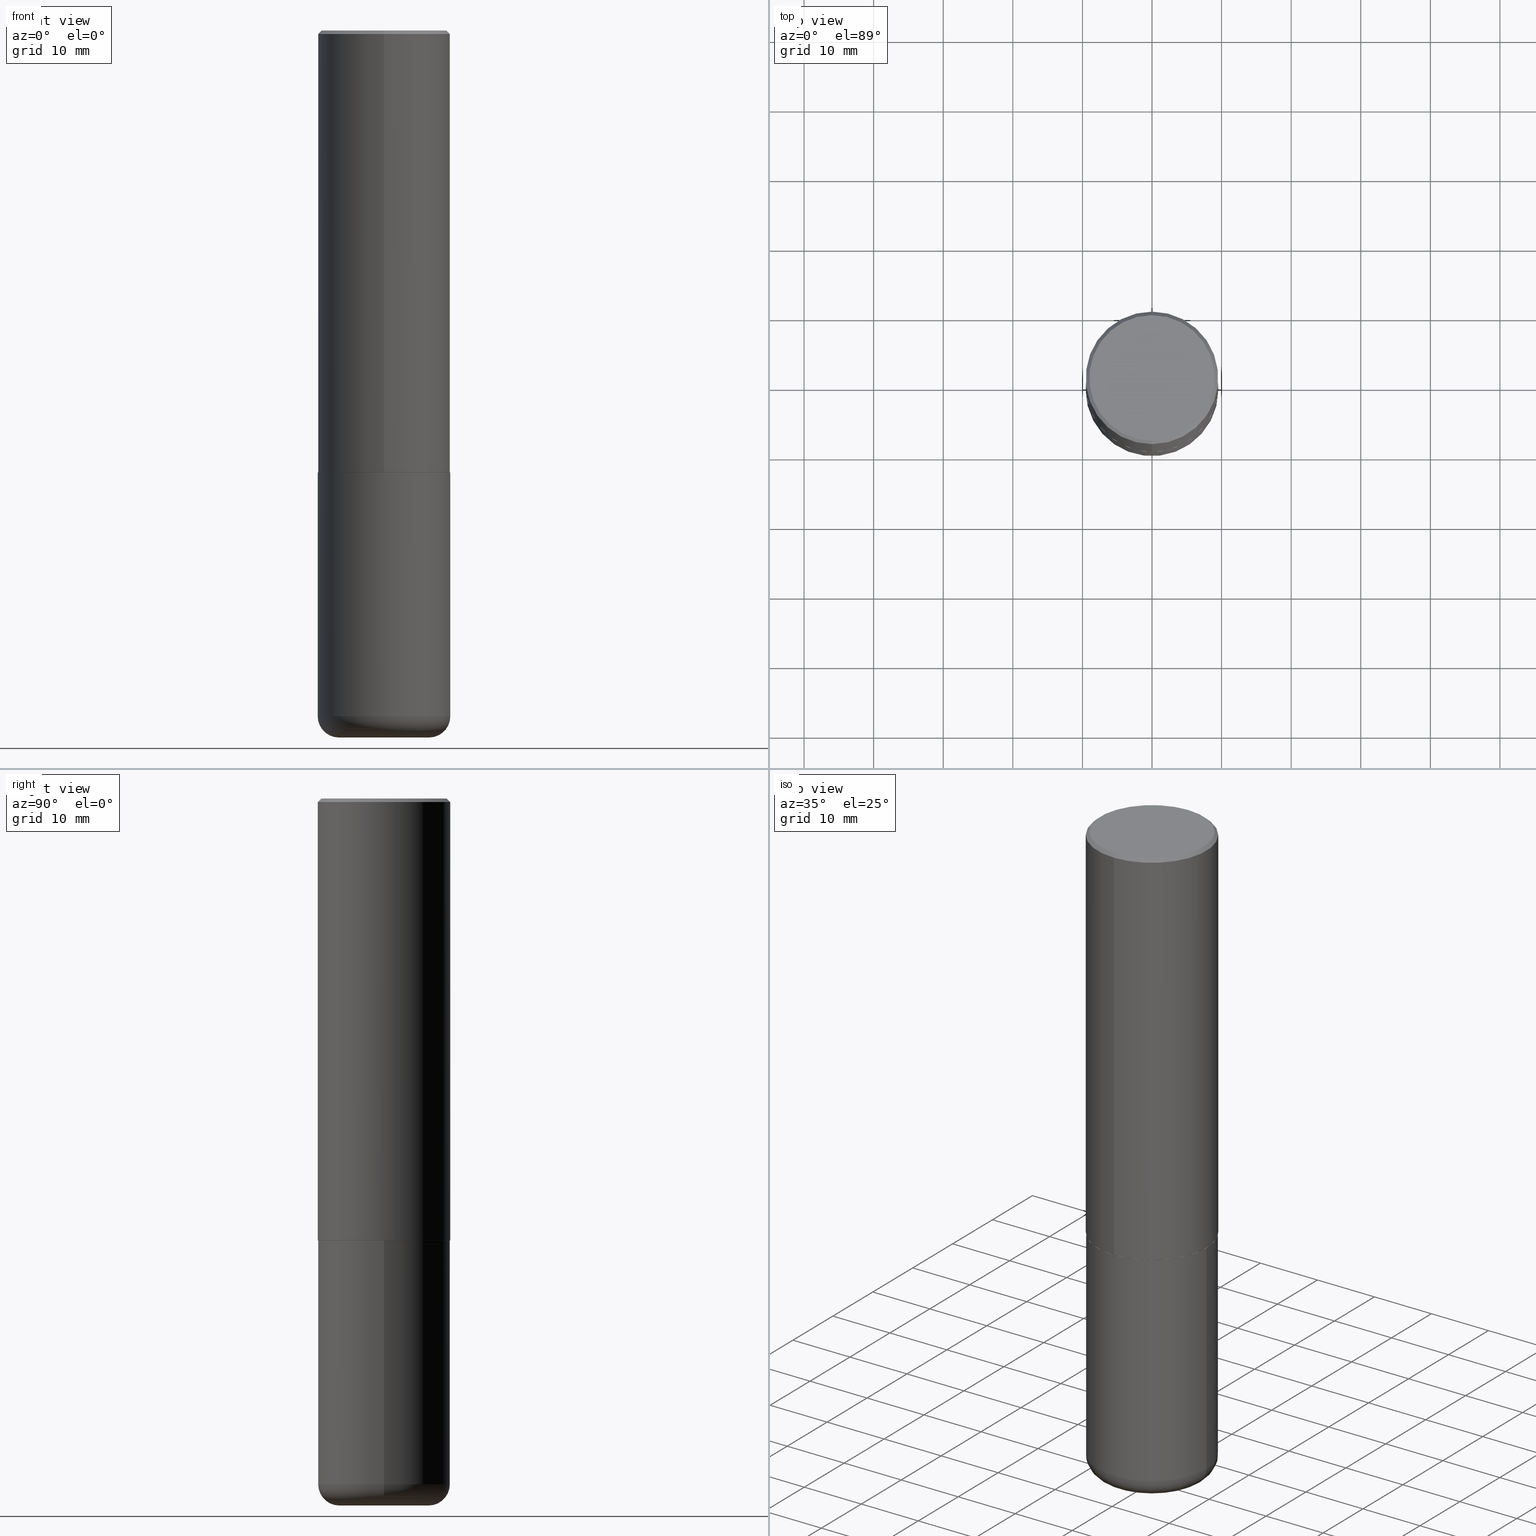
[diagram: canonical four-view strip — front | top / right | iso, engineering-drawing reading convention]
A machine part, canonical four-view strip (front | top / right | iso — engineering-drawing reading convention). The complete STEP part file that produces these views, byte-faithful:
ISO-10303-21;
HEADER;
FILE_DESCRIPTION (( 'STEP AP203' ),
    '1' );
FILE_NAME ('37213.STEP',
    '2024-03-01T22:02:40',
    ( '' ),
    ( '' ),
    'SwSTEP 2.0',
    'SolidWorks 2023',
    '' );
FILE_SCHEMA (( 'CONFIG_CONTROL_DESIGN' ));
ENDSEC;

DATA;
#1 = ORIENTED_EDGE ( 'NONE', *, *, #232, .T. ) ;
#2 = VERTEX_POINT ( 'NONE', #169 ) ;
#3 = AXIS2_PLACEMENT_3D ( 'NONE', #41, #257, #294 ) ;
#4 = AXIS2_PLACEMENT_3D ( 'NONE', #388, #96, #189 ) ;
#5 = ADVANCED_FACE ( 'NONE', ( #254 ), #165, .T. ) ;
#6 = CC_DESIGN_APPROVAL ( #330, ( #134 ) ) ;
#7 = ORIENTED_EDGE ( 'NONE', *, *, #35, .F. ) ;
#8 = FACE_OUTER_BOUND ( 'NONE', #93, .T. ) ;
#9 = ORIENTED_EDGE ( 'NONE', *, *, #220, .F. ) ;
#10 = AXIS2_PLACEMENT_3D ( 'NONE', #350, #274, #26 ) ;
#11 = DIRECTION ( 'NONE',  ( -2.444946167972934928E-29, 3.492229786509738161E-15, 1.000000000000000000 ) ) ;
#12 = DIRECTION ( 'NONE',  ( 6.982962677686265922E-15, 1.000000000000000000, -3.494488891895536035E-15 ) ) ;
#13 = CARTESIAN_POINT ( 'NONE',  ( 9.488418967998330085E-29, -1.354694759471140570E-14, -3.880000000000000338 ) ) ;
#14 = DATE_AND_TIME ( #140, #177 ) ;
#15 = VERTEX_POINT ( 'NONE', #367 ) ;
#16 = CARTESIAN_POINT ( 'NONE',  ( 2.657429831742835431E-15, 0.3739999999999912839, -2.500000000000001332 ) ) ;
#17 = CARTESIAN_POINT ( 'NONE',  ( 4.889892335945890560E-31, -6.984459573019506053E-17, -0.02000000000000008715 ) ) ;
#18 = EDGE_LOOP ( 'NONE', ( #161, #110 ) ) ;
#19 = CIRCLE ( 'NONE', #114, 0.3750000000000002776 ) ;
#20 = VERTEX_POINT ( 'NONE', #297 ) ;
#21 = CARTESIAN_POINT ( 'NONE',  ( 0.3750000000000000555, -2.618611004132350016E-15, 1.828566290923476203E-29 ) ) ;
#22 = DIRECTION ( 'NONE',  ( -1.000000000000000000, 6.982962677686265922E-15, -4.876176775795935793E-29 ) ) ;
#23 = ORIENTED_EDGE ( 'NONE', *, *, #276, .T. ) ;
#24 = DIRECTION ( 'NONE',  ( -2.445468806185136597E-29, 3.491481338843145583E-15, 1.000000000000000000 ) ) ;
#25 = ADVANCED_FACE ( 'NONE', ( #395 ), #369, .T. ) ;
#26 = DIRECTION ( 'NONE',  ( -6.982962677686266711E-15, -1.000000000000000000, 2.921762560068730595E-15 ) ) ;
#27 = CIRCLE ( 'NONE', #4, 0.3739999999999999991 ) ;
#28 = CARTESIAN_POINT ( 'NONE',  ( 9.488418967998330085E-29, -1.354694759471140570E-14, -3.880000000000000338 ) ) ;
#29 = DIRECTION ( 'NONE',  ( 2.444946167972934647E-29, -3.492229786509738161E-15, -1.000000000000000000 ) ) ;
#30 = DATE_AND_TIME ( #179, #88 ) ;
#31 = CARTESIAN_POINT ( 'NONE',  ( 6.112365419932337880E-29, -8.730574466274345798E-15, -2.500000000000000000 ) ) ;
#32 = CC_DESIGN_PERSON_AND_ORGANIZATION_ASSIGNMENT ( #337, #264, ( #134 ) ) ;
#33 = AXIS2_PLACEMENT_3D ( 'NONE', #412, #142, #116 ) ;
#34 = DIRECTION ( 'NONE',  ( -2.445468806185136597E-29, 3.491481338843145583E-15, 1.000000000000000000 ) ) ;
#35 = EDGE_CURVE ( 'NONE', #205, #42, #139, .T. ) ;
#36 = ORIENTED_EDGE ( 'NONE', *, *, #131, .F. ) ;
#37 = ADVANCED_FACE ( 'NONE', ( #339 ), #310, .T. ) ;
#38 = TOROIDAL_SURFACE ( 'NONE', #280, 0.2550000000000000044, 0.1200000000000001898 ) ;
#39 = VERTEX_POINT ( 'NONE', #402 ) ;
#40 = APPROVAL ( #129, 'UNSPECIFIED' ) ;
#41 = CARTESIAN_POINT ( 'NONE',  ( -4.181009497849235809E-45, 5.971929401690963589E-31, 1.710061985256567949E-16 ) ) ;
#42 = VERTEX_POINT ( 'NONE', #72 ) ;
#43 = CIRCLE ( 'NONE', #148, 0.3750000000000000555 ) ;
#44 = EDGE_CURVE ( 'NONE', #20, #209, #335, .T. ) ;
#45 = ORIENTED_EDGE ( 'NONE', *, *, #377, .F. ) ;
#46 = MANIFOLD_SOLID_BREP ( 'Body-Move/Copy2[2]', #364 ) ;
#47 = VECTOR ( 'NONE', #193, 39.37007874015748143 ) ;
#48 = DIRECTION ( 'NONE',  ( -2.445468806185136597E-29, 3.491481338843145583E-15, 1.000000000000000000 ) ) ;
#49 = CARTESIAN_POINT ( 'NONE',  ( 2.618611004132350411E-15, 0.3749999999999999445, -0.02000000000000139513 ) ) ;
#50 = CARTESIAN_POINT ( 'NONE',  ( 9.781875224740547508E-29, -1.396592535537258391E-14, -4.000000000000000888 ) ) ;
#51 = DIRECTION ( 'NONE',  ( 0.000000000000000000, 0.000000000000000000, 1.000000000000000000 ) ) ;
#52 = LINE ( 'NONE', #21, #127 ) ;
#53 = CARTESIAN_POINT ( 'NONE',  ( 2.478951750578623420E-15, 0.3549999999999998157, -1.154238474948128131E-15 ) ) ;
#54 = AXIS2_PLACEMENT_3D ( 'NONE', #121, #79, #379 ) ;
#55 = FACE_OUTER_BOUND ( 'NONE', #126, .T. ) ;
#56 = EDGE_CURVE ( 'NONE', #356, #39, #286, .T. ) ;
#57 = DIRECTION ( 'NONE',  ( -2.444946167972934928E-29, 3.492229786509738161E-15, 1.000000000000000000 ) ) ;
#58 = CARTESIAN_POINT ( 'NONE',  ( 2.660982545421636724E-15, 0.3739999999999912839, -2.500000000000001332 ) ) ;
#59 = EDGE_LOOP ( 'NONE', ( #227, #23, #170, #224 ) ) ;
#60 = AXIS2_PLACEMENT_3D ( 'NONE', #296, #168, #12 ) ;
#61 = DIRECTION ( 'NONE',  ( 2.444946167972934928E-29, -3.492229786509738161E-15, -1.000000000000000000 ) ) ;
#62 = EDGE_CURVE ( 'NONE', #209, #130, #212, .T. ) ;
#63 = EDGE_LOOP ( 'NONE', ( #386, #97 ) ) ;
#64 = AXIS2_PLACEMENT_3D ( 'NONE', #273, #51, #411 ) ;
#65 = CARTESIAN_POINT ( 'NONE',  ( -2.572686749164323547E-15, -0.3750000000000001110, -0.01999999999999877570 ) ) ;
#66 = ORIENTED_EDGE ( 'NONE', *, *, #362, .F. ) ;
#67 = CARTESIAN_POINT ( 'NONE',  ( -2.618611004132351200E-15, -0.3750000000000001665, 1.309586169941152501E-15 ) ) ;
#68 = COORDINATED_UNIVERSAL_TIME_OFFSET ( 5, 0, .BEHIND. ) ;
#69 = VECTOR ( 'NONE', #300, 39.37007874015748143 ) ;
#70 = VECTOR ( 'NONE', #376, 39.37007874015748143 ) ;
#71 = PRODUCT_RELATED_PRODUCT_CATEGORY ( 'detail', '', ( #90 ) ) ;
#72 = CARTESIAN_POINT ( 'NONE',  ( -0.3750000000000000555, -8.473290211809258834E-15, -2.500000000000000000 ) ) ;
#73 = PERSON_AND_ORGANIZATION ( #397, #230 ) ;
#74 = ORIENTED_EDGE ( 'NONE', *, *, #44, .F. ) ;
#75 = CARTESIAN_POINT ( 'NONE',  ( 0.000000000000000000, 0.000000000000000000, 0.000000000000000000 ) ) ;
#76 = CARTESIAN_POINT ( 'NONE',  ( 3.797124611134379022E-29, -2.253642886490752919E-14, -4.000000000000000000 ) ) ;
#77 = CIRCLE ( 'NONE', #399, 0.1200000000000002176 ) ;
#78 = APPROVAL_PERSON_ORGANIZATION ( #390, #40, #133 ) ;
#79 = DIRECTION ( 'NONE',  ( -2.444946167972934928E-29, 3.492229786509738161E-15, 1.000000000000000000 ) ) ;
#80 = DIMENSIONAL_EXPONENTS ( 1.000000000000000000, 0.000000000000000000, 0.000000000000000000, 0.000000000000000000, 0.000000000000000000, 0.000000000000000000, 0.000000000000000000 ) ;
#81 = ORIENTED_EDGE ( 'NONE', *, *, #389, .F. ) ;
#82 = COORDINATED_UNIVERSAL_TIME_OFFSET ( 5, 0, .BEHIND. ) ;
#83 = DIRECTION ( 'NONE',  ( -2.445468806185136597E-29, 3.491481338843145583E-15, 1.000000000000000000 ) ) ;
#84 = PERSON_AND_ORGANIZATION ( #397, #230 ) ;
#85 = CONICAL_SURFACE ( 'NONE', #190, 0.3739999999999999991, 0.7853981633976873100 ) ;
#86 = CARTESIAN_POINT ( 'NONE',  ( -0.3750000000000001110, -1.088241233561102684E-14, -3.880000000000000338 ) ) ;
#87 = AXIS2_PLACEMENT_3D ( 'NONE', #31, #216, #284 ) ;
#88 = LOCAL_TIME ( 17, 2, 40.00000000000000000, #82 ) ;
#89 = CC_DESIGN_DATE_AND_TIME_ASSIGNMENT ( #30, #181, ( #334 ) ) ;
#90 = PRODUCT ( '37213', '37213', '', ( #119 ) ) ;
#91 = CARTESIAN_POINT ( 'NONE',  ( -2.611628041454602471E-15, -0.3740000000000087699, -2.499999999999999112 ) ) ;
#92 = DATE_AND_TIME ( #123, #304 ) ;
#93 = EDGE_LOOP ( 'NONE', ( #81, #219 ) ) ;
#94 = ADVANCED_FACE ( 'NONE', ( #135 ), #85, .T. ) ;
#95 = PRODUCT_DEFINITION_SHAPE ( 'NONE', 'NONE',  #136 ) ;
#96 = DIRECTION ( 'NONE',  ( -2.444946167972934928E-29, 3.492229786509738161E-15, 1.000000000000000000 ) ) ;
#97 = ORIENTED_EDGE ( 'NONE', *, *, #220, .T. ) ;
#98 = LINE ( 'NONE', #65, #154 ) ;
#99 = CC_DESIGN_PERSON_AND_ORGANIZATION_ASSIGNMENT ( #194, #248, ( #90 ) ) ;
#100 = AXIS2_PLACEMENT_3D ( 'NONE', #182, #115, #22 ) ;
#101 = CARTESIAN_POINT ( 'NONE',  ( -0.3750000000000000555, 2.664535259100376091E-15, -1.844600658845589598E-29 ) ) ;
#102 = EDGE_CURVE ( 'NONE', #158, #107, #262, .T. ) ;
#103 = APPROVAL_STATUS ( 'not_yet_approved' ) ;
#104 = EDGE_CURVE ( 'NONE', #291, #130, #120, .T. ) ;
#105 = CIRCLE ( 'NONE', #54, 0.3750000000000000555 ) ;
#106 = DATE_TIME_ROLE ( 'creation_date' ) ;
#107 = VERTEX_POINT ( 'NONE', #91 ) ;
#108 = DIRECTION ( 'NONE',  ( -2.444946167972934928E-29, 3.492229786509738161E-15, 1.000000000000000000 ) ) ;
#109 = EDGE_CURVE ( 'NONE', #20, #291, #229, .T. ) ;
#110 = ORIENTED_EDGE ( 'NONE', *, *, #377, .T. ) ;
#111 = APPLICATION_CONTEXT ( 'configuration controlled 3d designs of mechanical parts and assemblies' ) ;
#112 = DIRECTION ( 'NONE',  ( -2.444946167972934928E-29, 3.492229786509738161E-15, 1.000000000000000000 ) ) ;
#113 = CARTESIAN_POINT ( 'NONE',  ( -0.2550000000000000044, -1.151822685739767881E-14, -4.000000000000000888 ) ) ;
#114 = AXIS2_PLACEMENT_3D ( 'NONE', #208, #112, #344 ) ;
#115 = DIRECTION ( 'NONE',  ( 2.438088387897960049E-29, -3.491481338843145188E-15, -1.000000000000000000 ) ) ;
#116 = DIRECTION ( 'NONE',  ( 1.000000000000000000, -6.982962677686266711E-15, 0.000000000000000000 ) ) ;
#117 = CARTESIAN_POINT ( 'NONE',  ( 6.113672015462842613E-29, -8.728703347107864943E-15, -2.500000000000000000 ) ) ;
#118 = DESIGN_CONTEXT ( 'detailed design', #111, 'design' ) ;
#119 = MECHANICAL_CONTEXT ( 'NONE', #328, 'mechanical' ) ;
#120 = LINE ( 'NONE', #267, #70 ) ;
#121 = CARTESIAN_POINT ( 'NONE',  ( 4.889892335945890560E-31, -6.984459573019506053E-17, -0.02000000000000008715 ) ) ;
#122 = LENGTH_MEASURE_WITH_UNIT ( LENGTH_MEASURE( 0.02539999999999999897 ), #153 );
#123 = CALENDAR_DATE ( 2024, 1, 3 ) ;
#124 = LINE ( 'NONE', #222, #47 ) ;
#125 = DIRECTION ( 'NONE',  ( 4.937700262164540154E-15, 0.7071067811865440200, -0.7071067811865510144 ) ) ;
#126 = EDGE_LOOP ( 'NONE', ( #355, #283, #352, #74 ) ) ;
#127 = VECTOR ( 'NONE', #275, 39.37007874015748143 ) ;
#128 = CC_DESIGN_APPROVAL ( #40, ( #136 ) ) ;
#129 = APPROVAL_STATUS ( 'not_yet_approved' ) ;
#130 = VERTEX_POINT ( 'NONE', #404 ) ;
#131 = EDGE_CURVE ( 'NONE', #291, #20, #19, .T. ) ;
#132 = EDGE_LOOP ( 'NONE', ( #311, #162, #141, #279 ) ) ;
#133 = APPROVAL_ROLE ( '' ) ;
#134 = PRODUCT_DEFINITION_FORMATION_WITH_SPECIFIED_SOURCE ( 'ANY', '', #90, .NOT_KNOWN. ) ;
#135 = FACE_OUTER_BOUND ( 'NONE', #359, .T. ) ;
#136 = PRODUCT_DEFINITION ( 'UNKNOWN', '', #134, #118 ) ;
#137 = DIRECTION ( 'NONE',  ( -6.982962677686265922E-15, -1.000000000000000000, 3.494488891895536035E-15 ) ) ;
#138 = CALENDAR_DATE ( 2024, 1, 3 ) ;
#139 = LINE ( 'NONE', #101, #69 ) ;
#140 = CALENDAR_DATE ( 2024, 1, 3 ) ;
#141 = ORIENTED_EDGE ( 'NONE', *, *, #109, .F. ) ;
#142 = DIRECTION ( 'NONE',  ( -2.445468806185136597E-29, 3.491481338843145583E-15, 1.000000000000000000 ) ) ;
#143 = DIRECTION ( 'NONE',  ( -6.982962677686266711E-15, -1.000000000000000000, 2.921762560068730595E-15 ) ) ;
#144 = CARTESIAN_POINT ( 'NONE',  ( 6.112365419932337880E-29, -8.730574466274345798E-15, -2.500000000000000000 ) ) ;
#145 = CARTESIAN_POINT ( 'NONE',  ( 0.000000000000000000, 0.000000000000000000, 0.000000000000000000 ) ) ;
#146 = ADVANCED_BREP_SHAPE_REPRESENTATION ( '37213', ( #321, #46, #64 ), #191 ) ;
#147 = CLOSED_SHELL ( 'NONE', ( #25, #37, #172, #5, #237, #332 ) ) ;
#148 = AXIS2_PLACEMENT_3D ( 'NONE', #371, #305, #269 ) ;
#149 = DIRECTION ( 'NONE',  ( 1.000000000000000000, -6.982962677686272233E-15, 0.000000000000000000 ) ) ;
#150 = APPROVAL ( #278, 'UNSPECIFIED' ) ;
#151 = CARTESIAN_POINT ( 'NONE',  ( -2.572686749164323547E-15, -0.3750000000000001110, -0.01999999999999877570 ) ) ;
#152 = CARTESIAN_POINT ( 'NONE',  ( 6.109920473764365540E-29, -8.727082236487837614E-15, -2.499000000000000110 ) ) ;
#153 =( LENGTH_UNIT ( ) NAMED_UNIT ( * ) SI_UNIT ( $, .METRE. ) );
#154 = VECTOR ( 'NONE', #384, 39.37007874015748143 ) ;
#155 = ADVANCED_FACE ( 'NONE', ( #55 ), #244, .T. ) ;
#156 = DIRECTION ( 'NONE',  ( 6.982962677686265922E-15, 1.000000000000000000, -3.494488891895536035E-15 ) ) ;
#157 = ORIENTED_EDGE ( 'NONE', *, *, #201, .T. ) ;
#158 = VERTEX_POINT ( 'NONE', #58 ) ;
#159 = ORIENTED_EDGE ( 'NONE', *, *, #282, .T. ) ;
#160 = CC_DESIGN_PERSON_AND_ORGANIZATION_ASSIGNMENT ( #84, #241, ( #334 ) ) ;
#161 = ORIENTED_EDGE ( 'NONE', *, *, #56, .T. ) ;
#162 = ORIENTED_EDGE ( 'NONE', *, *, #315, .T. ) ;
#163 = ORIENTED_EDGE ( 'NONE', *, *, #260, .T. ) ;
#164 = EDGE_CURVE ( 'NONE', #259, #42, #318, .T. ) ;
#165 = CYLINDRICAL_SURFACE ( 'NONE', #250, 0.3750000000000000555 ) ;
#166 = CONICAL_SURFACE ( 'NONE', #60, 0.3750000000000000555, 0.7853981633974468357 ) ;
#167 = ORIENTED_EDGE ( 'NONE', *, *, #245, .F. ) ;
#168 = DIRECTION ( 'NONE',  ( 2.444946167972934928E-29, -3.492229786509738161E-15, -1.000000000000000000 ) ) ;
#169 = CARTESIAN_POINT ( 'NONE',  ( 0.2550000000000000044, -1.574658083818258381E-14, -4.000000000000000888 ) ) ;
#170 = ORIENTED_EDGE ( 'NONE', *, *, #188, .T. ) ;
#171 = AXIS2_PLACEMENT_3D ( 'NONE', #152, #242, #413 ) ;
#172 = ADVANCED_FACE ( 'NONE', ( #372 ), #243, .F. ) ;
#173 = ORIENTED_EDGE ( 'NONE', *, *, #164, .F. ) ;
#174 = FACE_OUTER_BOUND ( 'NONE', #184, .T. ) ;
#175 = DIRECTION ( 'NONE',  ( -1.000000000000000000, 7.105427357600994759E-15, 0.000000000000000000 ) ) ;
#176 = VECTOR ( 'NONE', #108, 39.37007874015748143 ) ;
#177 = LOCAL_TIME ( 17, 2, 40.00000000000000000, #68 ) ;
#178 = FACE_OUTER_BOUND ( 'NONE', #59, .T. ) ;
#179 = CALENDAR_DATE ( 2024, 1, 3 ) ;
#180 = DIRECTION ( 'NONE',  ( -2.444946167972934928E-29, 3.492229786509738161E-15, 1.000000000000000000 ) ) ;
#181 = DATE_TIME_ROLE ( 'classification_date' ) ;
#182 = CARTESIAN_POINT ( 'NONE',  ( 6.113672015462842613E-29, -8.728703347107864943E-15, -2.500000000000000000 ) ) ;
#183 = CONICAL_SURFACE ( 'NONE', #354, 0.3739999999999999991, 0.7853981633976873100 ) ;
#184 = EDGE_LOOP ( 'NONE', ( #288, #375, #252, #217 ) ) ;
#185 = CARTESIAN_POINT ( 'NONE',  ( -4.181009497849235809E-45, 5.971929401690963589E-31, 1.710061985256567949E-16 ) ) ;
#186 = CARTESIAN_POINT ( 'NONE',  ( 9.781875224740547508E-29, -1.396592535537258391E-14, -4.000000000000000888 ) ) ;
#187 = EDGE_LOOP ( 'NONE', ( #198, #400, #301, #157 ) ) ;
#188 = EDGE_CURVE ( 'NONE', #2, #15, #77, .T. ) ;
#189 = DIRECTION ( 'NONE',  ( -6.982962677686266711E-15, -1.000000000000000000, 2.921762560068730595E-15 ) ) ;
#190 = AXIS2_PLACEMENT_3D ( 'NONE', #256, #180, #143 ) ;
#191 =( GEOMETRIC_REPRESENTATION_CONTEXT ( 3 ) GLOBAL_UNCERTAINTY_ASSIGNED_CONTEXT ( ( #353 ) ) GLOBAL_UNIT_ASSIGNED_CONTEXT ( ( #383, #342, #308 ) ) REPRESENTATION_CONTEXT ( 'NONE', 'WORKASPACE' ) );
#192 = CALENDAR_DATE ( 2024, 1, 3 ) ;
#193 = DIRECTION ( 'NONE',  ( -4.937700262165728178E-15, -0.7071067811867141062, 0.7071067811863809283 ) ) ;
#194 = PERSON_AND_ORGANIZATION ( #397, #230 ) ;
#195 = EDGE_LOOP ( 'NONE', ( #7, #336, #289, #9 ) ) ;
#196 = AXIS2_PLACEMENT_3D ( 'NONE', #185, #57, #287 ) ;
#197 = DIRECTION ( 'NONE',  ( -2.445468806185136597E-29, 3.491481338843145583E-15, 1.000000000000000000 ) ) ;
#198 = ORIENTED_EDGE ( 'NONE', *, *, #260, .F. ) ;
#199 = ORIENTED_EDGE ( 'NONE', *, *, #315, .F. ) ;
#200 = PERSON_AND_ORGANIZATION ( #397, #230 ) ;
#201 = EDGE_CURVE ( 'NONE', #130, #209, #105, .T. ) ;
#202 = DIRECTION ( 'NONE',  ( -1.000000000000000000, 6.982962677686265922E-15, -4.876176775795935793E-29 ) ) ;
#203 = AXIS2_PLACEMENT_3D ( 'NONE', #117, #83, #378 ) ;
#204 = FACE_OUTER_BOUND ( 'NONE', #18, .T. ) ;
#205 = VERTEX_POINT ( 'NONE', #86 ) ;
#206 = DIRECTION ( 'NONE',  ( 2.438088387897960049E-29, -3.491481338843145188E-15, -1.000000000000000000 ) ) ;
#207 = ADVANCED_FACE ( 'NONE', ( #204 ), #211, .F. ) ;
#208 = CARTESIAN_POINT ( 'NONE',  ( 6.109920473764365540E-29, -8.727082236487837614E-15, -2.499000000000000110 ) ) ;
#209 = VERTEX_POINT ( 'NONE', #151 ) ;
#210 = APPLICATION_PROTOCOL_DEFINITION ( 'international standard', 'config_control_design', 1994, #328 ) ;
#211 = PLANE ( 'NONE',  #213 ) ;
#212 = CIRCLE ( 'NONE', #302, 0.3750000000000000555 ) ;
#213 = AXIS2_PLACEMENT_3D ( 'NONE', #53, #29, #272 ) ;
#214 = PLANE ( 'NONE',  #374 ) ;
#215 = DIRECTION ( 'NONE',  ( -6.982962677686266711E-15, -1.000000000000000000, 3.491481338843145583E-15 ) ) ;
#216 = DIRECTION ( 'NONE',  ( -2.444946167972934647E-29, 3.492229786509738161E-15, 1.000000000000000000 ) ) ;
#217 = ORIENTED_EDGE ( 'NONE', *, *, #201, .F. ) ;
#218 = VECTOR ( 'NONE', #225, 39.37007874015748143 ) ;
#219 = ORIENTED_EDGE ( 'NONE', *, *, #102, .F. ) ;
#220 = EDGE_CURVE ( 'NONE', #42, #259, #312, .T. ) ;
#221 = EDGE_LOOP ( 'NONE', ( #45, #163, #268, #66 ) ) ;
#222 = CARTESIAN_POINT ( 'NONE',  ( -2.611628041454602471E-15, -0.3740000000000087699, -2.499999999999999112 ) ) ;
#223 = CONICAL_SURFACE ( 'NONE', #238, 0.3750000000000000555, 0.7853981633974468357 ) ;
#224 = ORIENTED_EDGE ( 'NONE', *, *, #327, .F. ) ;
#225 = DIRECTION ( 'NONE',  ( 5.024295867789263036E-15, 0.7071067811867189912, 0.7071067811863760433 ) ) ;
#226 = APPROVAL_ROLE ( '' ) ;
#227 = ORIENTED_EDGE ( 'NONE', *, *, #232, .F. ) ;
#228 = PERSON_AND_ORGANIZATION ( #397, #230 ) ;
#229 = CIRCLE ( 'NONE', #171, 0.3750000000000002776 ) ;
#230 = ORGANIZATION ( 'UNSPECIFIED', 'UNSPECIFIED', '' ) ;
#231 = CC_DESIGN_APPROVAL ( #150, ( #334 ) ) ;
#232 = EDGE_CURVE ( 'NONE', #360, #205, #323, .T. ) ;
#233 = APPROVAL_DATE_TIME ( #14, #330 ) ;
#234 = DIRECTION ( 'NONE',  ( -2.445468806185136597E-29, 3.491481338843145583E-15, 1.000000000000000000 ) ) ;
#235 = PERSON_AND_ORGANIZATION_ROLE ( 'creator' ) ;
#236 = CARTESIAN_POINT ( 'NONE',  ( 6.113672015462842613E-29, -8.728703347107864943E-15, -2.500000000000000000 ) ) ;
#237 = ADVANCED_FACE ( 'NONE', ( #178 ), #38, .T. ) ;
#238 = AXIS2_PLACEMENT_3D ( 'NONE', #391, #61, #156 ) ;
#239 = ADVANCED_FACE ( 'NONE', ( #174 ), #306, .T. ) ;
#240 = DIRECTION ( 'NONE',  ( -2.445468806185136597E-29, 3.491481338843145583E-15, 1.000000000000000000 ) ) ;
#241 = PERSON_AND_ORGANIZATION_ROLE ( 'classification_officer' ) ;
#242 = DIRECTION ( 'NONE',  ( -2.444946167972934928E-29, 3.492229786509738161E-15, 1.000000000000000000 ) ) ;
#243 = PLANE ( 'NONE',  #100 ) ;
#244 = CYLINDRICAL_SURFACE ( 'NONE', #303, 0.3750000000000001665 ) ;
#245 = EDGE_CURVE ( 'NONE', #2, #360, #331, .T. ) ;
#246 = FACE_OUTER_BOUND ( 'NONE', #187, .T. ) ;
#247 = EDGE_LOOP ( 'NONE', ( #320, #405, #173, #363 ) ) ;
#248 = PERSON_AND_ORGANIZATION_ROLE ( 'design_owner' ) ;
#249 = ADVANCED_FACE ( 'NONE', ( #246 ), #223, .T. ) ;
#250 = AXIS2_PLACEMENT_3D ( 'NONE', #263, #234, #329 ) ;
#251 = EDGE_LOOP ( 'NONE', ( #385, #1, #325, #341 ) ) ;
#252 = ORIENTED_EDGE ( 'NONE', *, *, #44, .T. ) ;
#253 = APPROVAL_DATE_TIME ( #326, #40 ) ;
#254 = FACE_OUTER_BOUND ( 'NONE', #195, .T. ) ;
#255 = LOCAL_TIME ( 17, 2, 40.00000000000000000, #295 ) ;
#256 = CARTESIAN_POINT ( 'NONE',  ( 6.112365419932337880E-29, -8.730574466274345798E-15, -2.500000000000000000 ) ) ;
#257 = DIRECTION ( 'NONE',  ( -2.444946167972934928E-29, 3.492229786509738161E-15, 1.000000000000000000 ) ) ;
#258 = DATE_AND_TIME ( #138, #255 ) ;
#259 = VERTEX_POINT ( 'NONE', #285 ) ;
#260 = EDGE_CURVE ( 'NONE', #39, #209, #98, .T. ) ;
#261 = DIRECTION ( 'NONE',  ( 1.000000000000000000, -6.982962677686263555E-15, 4.883557194083111219E-29 ) ) ;
#262 = CIRCLE ( 'NONE', #10, 0.3739999999999999991 ) ;
#263 = CARTESIAN_POINT ( 'NONE',  ( 0.000000000000000000, 0.000000000000000000, 0.000000000000000000 ) ) ;
#264 = PERSON_AND_ORGANIZATION_ROLE ( 'design_supplier' ) ;
#265 = EDGE_LOOP ( 'NONE', ( #167, #299 ) ) ;
#266 = DIRECTION ( 'NONE',  ( -6.982962677686266711E-15, -1.000000000000000000, 2.921762560068730595E-15 ) ) ;
#267 = CARTESIAN_POINT ( 'NONE',  ( 2.664535259100376486E-15, 0.3750000000000001665, -1.309586169941152501E-15 ) ) ;
#268 = ORIENTED_EDGE ( 'NONE', *, *, #62, .T. ) ;
#269 = DIRECTION ( 'NONE',  ( 1.000000000000000000, -6.982962677686266711E-15, 0.000000000000000000 ) ) ;
#270 = DIRECTION ( 'NONE',  ( -2.444946167972934928E-29, 3.492229786509738161E-15, 1.000000000000000000 ) ) ;
#271 = VECTOR ( 'NONE', #125, 39.37007874015748143 ) ;
#272 = DIRECTION ( 'NONE',  ( 6.982962677686265922E-15, 1.000000000000000000, -3.492229786509738161E-15 ) ) ;
#273 = CARTESIAN_POINT ( 'NONE',  ( 0.000000000000000000, 0.000000000000000000, 0.000000000000000000 ) ) ;
#274 = DIRECTION ( 'NONE',  ( -2.444946167972934928E-29, 3.492229786509738161E-15, 1.000000000000000000 ) ) ;
#275 = DIRECTION ( 'NONE',  ( -2.445468806185136877E-29, 3.491481338843145188E-15, 1.000000000000000000 ) ) ;
#276 = EDGE_CURVE ( 'NONE', #360, #2, #408, .T. ) ;
#277 = CARTESIAN_POINT ( 'NONE',  ( -0.2550000000000000044, -1.173506361852314940E-14, -3.880000000000000338 ) ) ;
#278 = APPROVAL_STATUS ( 'not_yet_approved' ) ;
#279 = ORIENTED_EDGE ( 'NONE', *, *, #282, .F. ) ;
#280 = AXIS2_PLACEMENT_3D ( 'NONE', #28, #48, #415 ) ;
#281 = APPROVAL_PERSON_ORGANIZATION ( #317, #150, #416 ) ;
#282 = EDGE_CURVE ( 'NONE', #107, #20, #124, .T. ) ;
#283 = ORIENTED_EDGE ( 'NONE', *, *, #104, .T. ) ;
#284 = DIRECTION ( 'NONE',  ( -6.982962677686265922E-15, -1.000000000000000000, 3.492229786509738161E-15 ) ) ;
#285 = CARTESIAN_POINT ( 'NONE',  ( 0.3750000000000000555, -1.134731435124021338E-14, -2.500000000000000000 ) ) ;
#286 = CIRCLE ( 'NONE', #3, 0.3549999999999998157 ) ;
#287 = DIRECTION ( 'NONE',  ( -6.982962677686266711E-15, -1.000000000000000000, 3.492229786509737767E-15 ) ) ;
#288 = ORIENTED_EDGE ( 'NONE', *, *, #104, .F. ) ;
#289 = ORIENTED_EDGE ( 'NONE', *, *, #319, .T. ) ;
#290 = CARTESIAN_POINT ( 'NONE',  ( 2.664535259100408040E-15, 0.3749999999999915623, -2.499000000000001442 ) ) ;
#291 = VERTEX_POINT ( 'NONE', #290 ) ;
#292 = LINE ( 'NONE', #16, #218 ) ;
#293 = AXIS2_PLACEMENT_3D ( 'NONE', #186, #34, #418 ) ;
#294 = DIRECTION ( 'NONE',  ( -6.982962677686266711E-15, -1.000000000000000000, 3.492229786509737767E-15 ) ) ;
#295 = COORDINATED_UNIVERSAL_TIME_OFFSET ( 5, 0, .BEHIND. ) ;
#296 = CARTESIAN_POINT ( 'NONE',  ( 4.889892335945890560E-31, -6.984459573019506053E-17, -0.02000000000000008715 ) ) ;
#297 = CARTESIAN_POINT ( 'NONE',  ( -2.618611004132290852E-15, -0.3750000000000090483, -2.498999999999999222 ) ) ;
#298 = ADVANCED_FACE ( 'NONE', ( #394 ), #166, .T. ) ;
#299 = ORIENTED_EDGE ( 'NONE', *, *, #276, .F. ) ;
#300 = DIRECTION ( 'NONE',  ( -2.445468806185136877E-29, 3.491481338843145188E-15, 1.000000000000000000 ) ) ;
#301 = ORIENTED_EDGE ( 'NONE', *, *, #362, .T. ) ;
#302 = AXIS2_PLACEMENT_3D ( 'NONE', #17, #11, #137 ) ;
#303 = AXIS2_PLACEMENT_3D ( 'NONE', #349, #381, #314 ) ;
#304 = LOCAL_TIME ( 17, 2, 40.00000000000000000, #382 ) ;
#305 = DIRECTION ( 'NONE',  ( -2.445468806185136597E-29, 3.491481338843145583E-15, 1.000000000000000000 ) ) ;
#306 = CYLINDRICAL_SURFACE ( 'NONE', #393, 0.3750000000000001665 ) ;
#307 = SHAPE_DEFINITION_REPRESENTATION ( #95, #146 ) ;
#308 =( NAMED_UNIT ( * ) SI_UNIT ( $, .STERADIAN. ) SOLID_ANGLE_UNIT ( ) );
#309 = DIRECTION ( 'NONE',  ( 1.000000000000000000, -6.982962677686267499E-15, 0.000000000000000000 ) ) ;
#310 = TOROIDAL_SURFACE ( 'NONE', #365, 0.2550000000000000044, 0.1200000000000001898 ) ;
#311 = ORIENTED_EDGE ( 'NONE', *, *, #389, .T. ) ;
#312 = CIRCLE ( 'NONE', #203, 0.3750000000000000555 ) ;
#313 = LOCAL_TIME ( 17, 2, 40.00000000000000000, #357 ) ;
#314 = DIRECTION ( 'NONE',  ( -6.982962677686266711E-15, -1.000000000000000000, 3.492229786509738556E-15 ) ) ;
#315 = EDGE_CURVE ( 'NONE', #158, #291, #292, .T. ) ;
#316 = DIRECTION ( 'NONE',  ( 1.000000000000000000, -6.982962677686264344E-15, 0.000000000000000000 ) ) ;
#317 = PERSON_AND_ORGANIZATION ( #397, #230 ) ;
#318 = CIRCLE ( 'NONE', #347, 0.3750000000000000555 ) ;
#319 = EDGE_CURVE ( 'NONE', #15, #259, #52, .T. ) ;
#320 = ORIENTED_EDGE ( 'NONE', *, *, #358, .T. ) ;
#321 = MANIFOLD_SOLID_BREP ( 'Body-Move/Copy2[1]', #147 ) ;
#322 = APPLICATION_PROTOCOL_DEFINITION ( 'international standard', 'config_control_design', 1994, #111 ) ;
#323 = CIRCLE ( 'NONE', #340, 0.1200000000000002176 ) ;
#324 = CC_DESIGN_DATE_AND_TIME_ASSIGNMENT ( #258, #106, ( #136 ) ) ;
#325 = ORIENTED_EDGE ( 'NONE', *, *, #358, .F. ) ;
#326 = DATE_AND_TIME ( #192, #313 ) ;
#327 = EDGE_CURVE ( 'NONE', #205, #15, #366, .T. ) ;
#328 = APPLICATION_CONTEXT ( 'configuration controlled 3d designs of mechanical parts and assemblies' ) ;
#329 = DIRECTION ( 'NONE',  ( 1.000000000000000000, -6.982962677686265922E-15, 4.876176775795935793E-29 ) ) ;
#330 = APPROVAL ( #103, 'UNSPECIFIED' ) ;
#331 = CIRCLE ( 'NONE', #417, 0.2550000000000000044 ) ;
#332 = ADVANCED_FACE ( 'NONE', ( #414 ), #214, .T. ) ;
#333 = DIRECTION ( 'NONE',  ( 1.000000000000000000, -6.982962677686265922E-15, 4.876176775795935793E-29 ) ) ;
#334 = SECURITY_CLASSIFICATION ( '', '', #370 ) ;
#335 = LINE ( 'NONE', #67, #176 ) ;
#336 = ORIENTED_EDGE ( 'NONE', *, *, #327, .T. ) ;
#337 = PERSON_AND_ORGANIZATION ( #397, #230 ) ;
#338 = DIRECTION ( 'NONE',  ( -2.444946167972934928E-29, 3.492229786509738161E-15, 1.000000000000000000 ) ) ;
#339 = FACE_OUTER_BOUND ( 'NONE', #251, .T. ) ;
#340 = AXIS2_PLACEMENT_3D ( 'NONE', #277, #410, #175 ) ;
#341 = ORIENTED_EDGE ( 'NONE', *, *, #188, .F. ) ;
#342 =( NAMED_UNIT ( * ) PLANE_ANGLE_UNIT ( ) SI_UNIT ( $, .RADIAN. ) );
#343 = LINE ( 'NONE', #49, #271 ) ;
#344 = DIRECTION ( 'NONE',  ( -6.982962677686266711E-15, -1.000000000000000000, 2.913971193241878794E-15 ) ) ;
#345 = CARTESIAN_POINT ( 'NONE',  ( 0.2550000000000000044, -1.532760307752140402E-14, -3.880000000000000338 ) ) ;
#346 = ADVANCED_FACE ( 'NONE', ( #406 ), #183, .T. ) ;
#347 = AXIS2_PLACEMENT_3D ( 'NONE', #236, #24, #316 ) ;
#348 = CC_DESIGN_SECURITY_CLASSIFICATION ( #334, ( #134 ) ) ;
#349 = CARTESIAN_POINT ( 'NONE',  ( 0.000000000000000000, 0.000000000000000000, 0.000000000000000000 ) ) ;
#350 = CARTESIAN_POINT ( 'NONE',  ( 6.112365419932337880E-29, -8.730574466274345798E-15, -2.500000000000000000 ) ) ;
#351 = APPROVAL_DATE_TIME ( #92, #150 ) ;
#352 = ORIENTED_EDGE ( 'NONE', *, *, #62, .F. ) ;
#353 = UNCERTAINTY_MEASURE_WITH_UNIT (LENGTH_MEASURE( 1.000000000000000082E-05 ), #383, 'distance_accuracy_value', 'NONE');
#354 = AXIS2_PLACEMENT_3D ( 'NONE', #144, #338, #266 ) ;
#355 = ORIENTED_EDGE ( 'NONE', *, *, #109, .T. ) ;
#356 = VERTEX_POINT ( 'NONE', #403 ) ;
#357 = COORDINATED_UNIVERSAL_TIME_OFFSET ( 5, 0, .BEHIND. ) ;
#358 = EDGE_CURVE ( 'NONE', #15, #205, #43, .T. ) ;
#359 = EDGE_LOOP ( 'NONE', ( #199, #392, #159, #36 ) ) ;
#360 = VERTEX_POINT ( 'NONE', #113 ) ;
#361 = DIRECTION ( 'NONE',  ( -2.445468806185136597E-29, 3.491481338843145583E-15, 1.000000000000000000 ) ) ;
#362 = EDGE_CURVE ( 'NONE', #356, #130, #343, .T. ) ;
#363 = ORIENTED_EDGE ( 'NONE', *, *, #319, .F. ) ;
#364 = CLOSED_SHELL ( 'NONE', ( #346, #155, #298, #249, #239, #94, #396, #207 ) ) ;
#365 = AXIS2_PLACEMENT_3D ( 'NONE', #13, #361, #261 ) ;
#366 = CIRCLE ( 'NONE', #33, 0.3750000000000000555 ) ;
#367 = CARTESIAN_POINT ( 'NONE',  ( 0.3750000000000001110, -1.616555859884375729E-14, -3.880000000000000338 ) ) ;
#368 = APPROVAL_PERSON_ORGANIZATION ( #73, #330, #226 ) ;
#369 = CYLINDRICAL_SURFACE ( 'NONE', #398, 0.3750000000000000555 ) ;
#370 = SECURITY_CLASSIFICATION_LEVEL ( 'unclassified' ) ;
#371 = CARTESIAN_POINT ( 'NONE',  ( 9.488418967998330085E-29, -1.354694759471140570E-14, -3.880000000000000338 ) ) ;
#372 = FACE_OUTER_BOUND ( 'NONE', #63, .T. ) ;
#373 = PERSON_AND_ORGANIZATION_ROLE ( 'creator' ) ;
#374 = AXIS2_PLACEMENT_3D ( 'NONE', #76, #206, #202 ) ;
#375 = ORIENTED_EDGE ( 'NONE', *, *, #131, .T. ) ;
#376 = DIRECTION ( 'NONE',  ( -2.444946167972934928E-29, 3.492229786509738161E-15, 1.000000000000000000 ) ) ;
#377 = EDGE_CURVE ( 'NONE', #39, #356, #387, .T. ) ;
#378 = DIRECTION ( 'NONE',  ( 1.000000000000000000, -6.982962677686264344E-15, 0.000000000000000000 ) ) ;
#379 = DIRECTION ( 'NONE',  ( -6.982962677686265922E-15, -1.000000000000000000, 3.494488891895536035E-15 ) ) ;
#380 = PLANE ( 'NONE',  #87 ) ;
#381 = DIRECTION ( 'NONE',  ( -2.444946167972934928E-29, 3.492229786509738161E-15, 1.000000000000000000 ) ) ;
#382 = COORDINATED_UNIVERSAL_TIME_OFFSET ( 5, 0, .BEHIND. ) ;
#383 =( CONVERSION_BASED_UNIT ( 'INCH', #122 ) LENGTH_UNIT ( ) NAMED_UNIT ( #80 ) );
#384 = DIRECTION ( 'NONE',  ( -4.851104656540956386E-15, -0.7071067811865489050, -0.7071067811865461294 ) ) ;
#385 = ORIENTED_EDGE ( 'NONE', *, *, #245, .T. ) ;
#386 = ORIENTED_EDGE ( 'NONE', *, *, #164, .T. ) ;
#387 = CIRCLE ( 'NONE', #196, 0.3549999999999998157 ) ;
#388 = CARTESIAN_POINT ( 'NONE',  ( 6.112365419932337880E-29, -8.730574466274345798E-15, -2.500000000000000000 ) ) ;
#389 = EDGE_CURVE ( 'NONE', #107, #158, #27, .T. ) ;
#390 = PERSON_AND_ORGANIZATION ( #397, #230 ) ;
#391 = CARTESIAN_POINT ( 'NONE',  ( 4.889892335945890560E-31, -6.984459573019506053E-17, -0.02000000000000008715 ) ) ;
#392 = ORIENTED_EDGE ( 'NONE', *, *, #102, .T. ) ;
#393 = AXIS2_PLACEMENT_3D ( 'NONE', #145, #270, #407 ) ;
#394 = FACE_OUTER_BOUND ( 'NONE', #221, .T. ) ;
#395 = FACE_OUTER_BOUND ( 'NONE', #247, .T. ) ;
#396 = ADVANCED_FACE ( 'NONE', ( #8 ), #380, .F. ) ;
#397 = PERSON ( 'UNSPECIFIED', 'UNSPECIFIED', 'UNSPECIFIED', ('UNSPECIFIED'), ('UNSPECIFIED'), ('UNSPECIFIED') ) ;
#398 = AXIS2_PLACEMENT_3D ( 'NONE', #75, #197, #333 ) ;
#399 = AXIS2_PLACEMENT_3D ( 'NONE', #345, #215, #149 ) ;
#400 = ORIENTED_EDGE ( 'NONE', *, *, #56, .F. ) ;
#401 = CC_DESIGN_PERSON_AND_ORGANIZATION_ASSIGNMENT ( #200, #373, ( #136 ) ) ;
#402 = CARTESIAN_POINT ( 'NONE',  ( -2.504081769186608216E-15, -0.3549999999999998157, 1.410747772736613804E-15 ) ) ;
#403 = CARTESIAN_POINT ( 'NONE',  ( 2.548781377355487113E-15, 0.3549999999999998157, -1.068735375685299770E-15 ) ) ;
#404 = CARTESIAN_POINT ( 'NONE',  ( 2.618611004132350411E-15, 0.3749999999999999445, -0.02000000000000139513 ) ) ;
#405 = ORIENTED_EDGE ( 'NONE', *, *, #35, .T. ) ;
#406 = FACE_OUTER_BOUND ( 'NONE', #132, .T. ) ;
#407 = DIRECTION ( 'NONE',  ( -6.982962677686266711E-15, -1.000000000000000000, 3.492229786509738556E-15 ) ) ;
#408 = CIRCLE ( 'NONE', #293, 0.2550000000000000044 ) ;
#409 = CC_DESIGN_PERSON_AND_ORGANIZATION_ASSIGNMENT ( #228, #235, ( #134 ) ) ;
#410 = DIRECTION ( 'NONE',  ( 7.105427357601001859E-15, 1.000000000000000000, -3.491481338843145583E-15 ) ) ;
#411 = DIRECTION ( 'NONE',  ( 1.000000000000000000, 0.000000000000000000, 0.000000000000000000 ) ) ;
#412 = CARTESIAN_POINT ( 'NONE',  ( 9.488418967998330085E-29, -1.354694759471140570E-14, -3.880000000000000338 ) ) ;
#413 = DIRECTION ( 'NONE',  ( -6.982962677686266711E-15, -1.000000000000000000, 2.913971193241878794E-15 ) ) ;
#414 = FACE_OUTER_BOUND ( 'NONE', #265, .T. ) ;
#415 = DIRECTION ( 'NONE',  ( 1.000000000000000000, -6.982962677686263555E-15, 4.883557194083111219E-29 ) ) ;
#416 = APPROVAL_ROLE ( '' ) ;
#417 = AXIS2_PLACEMENT_3D ( 'NONE', #50, #240, #309 ) ;
#418 = DIRECTION ( 'NONE',  ( 1.000000000000000000, -6.982962677686267499E-15, 0.000000000000000000 ) ) ;
ENDSEC;
END-ISO-10303-21;
